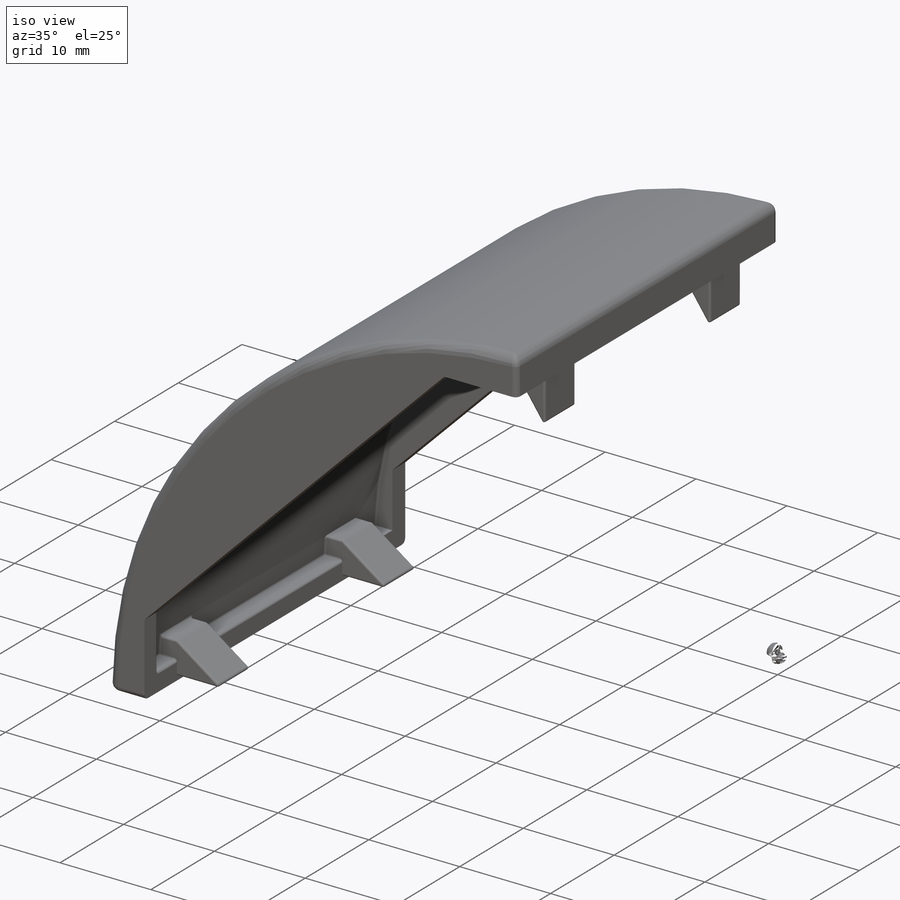
[diagram: iso view]
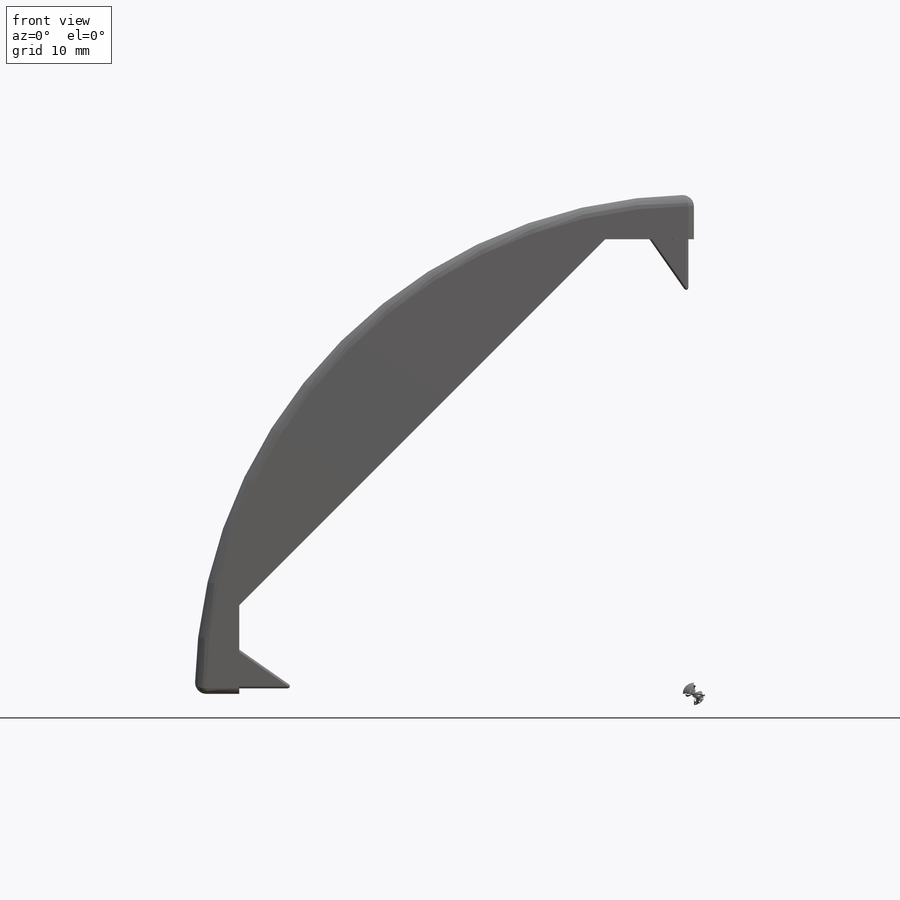
[diagram: front view]
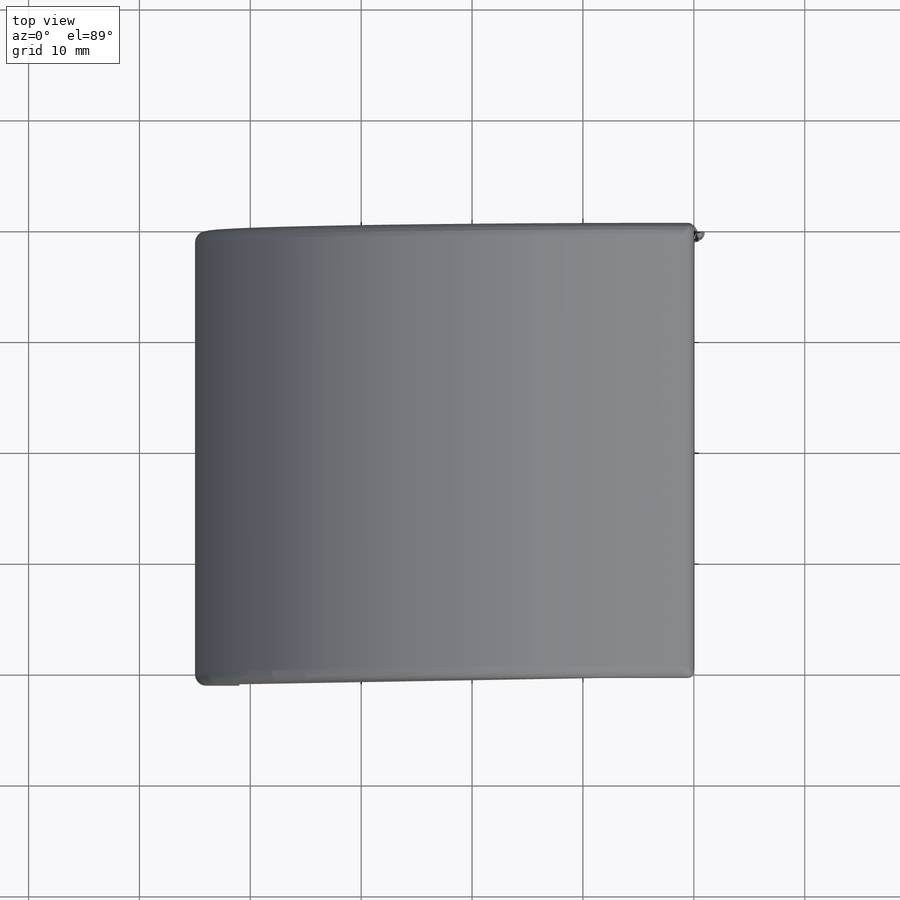
[diagram: top view]
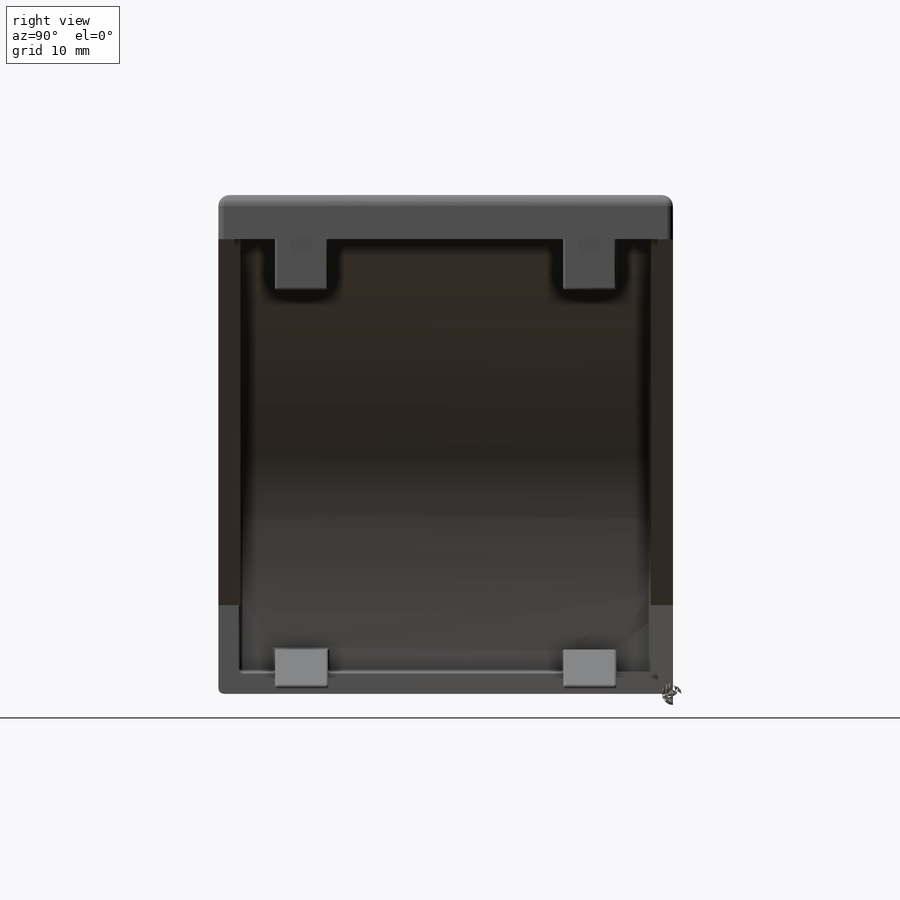
[diagram: right view]
SOLIDWORKS PART (.sldprt)
format: sldprt  version: not decoded by parser v0  size: 727,040 bytes
history: native  units: mm
features: fillet x34, plane x5, sketch x3, extrude x2, mirror x2, material x1, shell x1 (+8 scaffold rows collapsed)
feature tree (56):
  scaffold x8  (default folders/planes/origin — collapsed)
  material  "ABS"
  plane  "前视"
  plane  "上视"
  plane  "右视"
  sketch  "草图1"  dims[D1=90.0mm D2=8.0mm D3=41.0mm D4=8.0mm D5=41.0mm]
  extrude  "凸台-拉伸1"  Depth=41mm
  shell  "抽壳1"  Thickness=2mm
  sketch  "3D草图1"  dims[c1.D1=3.1mm c1.D2=~0.35607mm c1.D6=2.0mm c1.D3=2.0mm c1.D4=~0.403837mm c2.D2=4.0mm c2.D5=2.0mm c3.D5=145.0deg c3.D6=~0.308292mm c3.D7=0.5mm]
  extrude  "凸台-拉伸3"  Depth=4.8mm
  plane  "基准面1"  Offset=20.5mm
  mirror  "镜向1"
  sketch  "草图3"
  plane  "基准面2"
  mirror  "镜向2"
  fillet  "圆角13"  Radius=0.2mm
  fillet  "圆角16"  Radius=0.2mm
  fillet  "圆角17"  Radius=0.2mm
  fillet  "圆角18"  Radius=0.2mm
  fillet  "圆角19"  Radius=0.2mm
  fillet  "圆角23"  Radius=0.2mm
  fillet  "圆角24"  Radius=0.2mm
  fillet  "圆角26"  Radius=0.2mm
  fillet  "圆角29"  Radius=0.2mm
  fillet  "圆角31"  Radius=0.2mm
  fillet  "圆角32"  Radius=0.2mm
  fillet  "圆角33"  Radius=0.2mm
  fillet  "圆角34"  Radius=0.2mm
  fillet  "圆角38"  Radius=0.2mm
  fillet  "圆角43"  Radius=0.2mm
  fillet  "圆角44"  Radius=0.2mm
  fillet  "圆角46"  Radius=0.2mm
  fillet  "圆角47"  Radius=0.2mm
  fillet  "圆角48"  Radius=0.2mm
  fillet  "圆角49"  Radius=0.2mm
  fillet  "圆角50"  Radius=0.2mm
  fillet  "圆角51"  Radius=0.2mm
  fillet  "圆角52"  Radius=0.2mm
  fillet  "圆角53"  Radius=0.2mm
  fillet  "圆角54"  Radius=0.2mm
  fillet  "圆角57"  Radius=0.2mm
  fillet  "圆角58"  Radius=0.2mm
  fillet  "圆角59"  Radius=1mm
  fillet  "圆角60"  Radius=0.5mm
  fillet  "圆角61"  Radius=0.2mm
  fillet  "圆角62"  Radius=0.2mm
  fillet  "圆角63"  Radius=0.2mm
  fillet  "圆角64"  Radius=0.2mm
  fillet  "圆角65"  Radius=0.2mm
decode coverage: 39 of 42 modeling features carry decoded parameters
note: ~ marks probable driven/reference dimensions
note: suppression state not decoded; provenance and decode notes live in map.json
